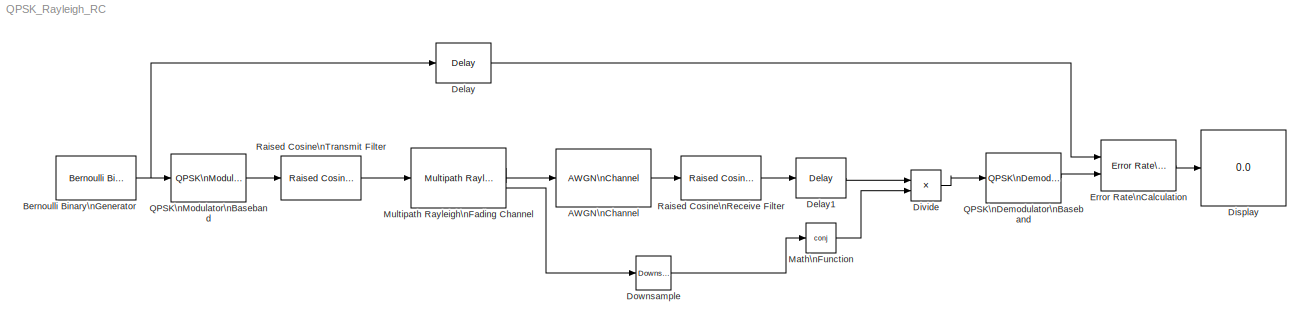
MODEL QPSK_Rayleigh_RC
KIND model
BLOCK [Reference] AWGN\nChannel  REF=commchan3/AWGN\nChannel
  EbNodB = 10
  EsNodB = 10
  FunctionWithSeparateData = off
  GeneratePreprocessorConditionals = off
  InputProcessing = Columns as channels (frame based)
  Ports = [1, 1]
  Ps = 1
  RTWMemSecDataConstants = Inherit from model
  RTWMemSecDataInternal = Inherit from model
  RTWMemSecDataParameters = Inherit from model
  RTWMemSecFuncExecute = Inherit from model
  RTWMemSecFuncInitTerm = Inherit from model
  SID = 3
  SNRdB = 7
  ShowPortLabels = FromPortIcon
  SourceBlock = commchan3/AWGN\nChannel
  SourceType = AWGN Channel
  SystemSampleTime = -1
  Tsym = 1
  UserData = DataTag0
  UserDataPersistent = on
  bitsPerSym = 1
  noiseMode = Signal to noise ratio  (SNR)
  seed = 67
  variance = 1
BLOCK [Reference] Bernoulli Binary\nGenerator  REF=commrandsrc2/Bernoulli Binary\nGenerator
  DialogController = commDDGCreate
  DialogControllerArgs = DataTag1
  FunctionWithSeparateData = off
  GeneratePreprocessorConditionals = off
  P = 0.5
  Ports = [0, 1]
  RTWMemSecDataConstants = Inherit from model
  RTWMemSecDataInternal = Inherit from model
  RTWMemSecDataParameters = Inherit from model
  RTWMemSecFuncExecute = Inherit from model
  RTWMemSecFuncInitTerm = Inherit from model
  SID = 1
  ShowPortLabels = FromPortIcon
  SourceBlock = commrandsrc2/Bernoulli Binary\nGenerator
  SourceType = Bernoulli Binary Generator
  SystemSampleTime = -1
  Ts = 1e-6
  frameBased = on
  orient = off
  outDataType = double
  sampPerFrame = 100
  seed = 61
BLOCK [Reference] Delay  REF=dspsigops/Delay
  InputProcessing = Columns as channels (frame based)
  Ports = [1, 1]
  SID = 11
  SourceBlock = dspsigops/Delay
  SourceType = Delay
  UserData = DataTag2
  UserDataPersistent = on
  delay = 100
  dif_ic_for_ch = off
  dif_ic_for_dly = off
  dly_unit = Samples
  ic = 0
  ic_detail = off
  reset_popup = None
BLOCK [Reference] Delay1  REF=dspsigops/Delay
  InputProcessing = Columns as channels (frame based)
  Ports = [1, 1]
  SID = 13
  SourceBlock = dspsigops/Delay
  SourceType = Delay
  UserData = DataTag3
  UserDataPersistent = on
  delay = 40
  dif_ic_for_ch = off
  dif_ic_for_dly = off
  dly_unit = Samples
  ic = 0
  ic_detail = off
  reset_popup = None
BLOCK [Display] Display
  Decimation = 1
  Lockdown = off
  Ports = [1]
  SID = 6
BLOCK [Product] Divide
  InputSameDT = off
  Inputs = **
  OutDataTypeStr = Inherit: Inherit via internal rule
  Ports = [2, 1]
  RndMeth = Floor
  SID = 23
  SaturateOnIntegerOverflow = off
BLOCK [Reference] Downsample  REF=dspsigops/Downsample
  InputProcessing = Columns as channels (frame based)
  N = 8
  Ports = [1, 1]
  RateOptions = Enforce single-rate processing
  SID = 24
  SourceBlock = dspsigops/Downsample
  SourceType = Downsample
  UserData = DataTag4
  UserDataPersistent = on
  fmode = Maintain input frame size
  ic = 0
  phase = 0
  smode = Allow multirate
BLOCK [Reference] Error Rate\nCalculation  REF=commsink2/Error Rate\nCalculation
  N = 0
  PMode = Port
  Ports = [2, 1]
  RsMode2 = off
  SID = 5
  SourceBlock = commsink2/Error Rate\nCalculation
  SourceType = Error Rate Calculation
  WsName = ErrorVec
  cp_mode = Entire frame
  maxBits = 1e6
  numErr = 100
  st_delay = 0
  stop = off
  subframe = []
BLOCK [Math] Math\nFunction
  Operator = conj
  Ports = [1, 1]
  SID = 21
BLOCK [Reference] Multipath Rayleigh\nFading Channel  REF=commchan3/Multipath Rayleigh\nFading Channel
  FunctionWithSeparateData = off
  GeneratePreprocessorConditionals = off
  Ports = [1, 2]
  RTWMemSecDataConstants = Inherit from model
  RTWMemSecDataInternal = Inherit from model
  RTWMemSecDataParameters = Inherit from model
  RTWMemSecFuncExecute = Inherit from model
  RTWMemSecFuncInitTerm = Inherit from model
  SID = 20
  ShowPortLabels = FromPortIcon
  SourceBlock = commchan3/Multipath Rayleigh\nFading Channel
  SourceType = Multipath Rayleigh Fading Channel
  SystemSampleTime = -1
  avgPathGaindB = 0
  centerFreqGaussian1 = 0.0
  centerFreqGaussian2 = 0.0
  coeffBell = 9
  coeffRounded = [1 -1.72 0.785]
  dopplerSpectrum = doppler.jakes
  enableProbe = 0
  freqMinMaxAJakes = [0 1]
  freqMinMaxRJakes = [0 1]
  gainGaussian1 = 0.5
  gainGaussian2 = 0.5
  maxDopplerShift = 40
  normalizePathGains = on
  openVisAtStart = off
  outDelay = off
  outPathGains = on
  pathDelays = 0
  seed = 73
  sigmaGaussian = 1/sqrt(2)
  sigmaGaussian1 = 1/sqrt(2)
  sigmaGaussian2 = 1/sqrt(2)
  spectrumType = Jakes
BLOCK [Reference] QPSK\nDemodulator\nBaseband  REF=commdigbbndpm3/QPSK\nDemodulator\nBaseband
  Dec = Gray
  DecType = Hard decision
  DialogController = commDDGCreate
  DialogControllerArgs = DataTag5
  OutType = Bit
  Ph = pi/4
  Ports = [1, 1]
  SID = 4
  SourceBlock = commdigbbndpm3/QPSK\nDemodulator\nBaseband
  SourceType = QPSK Demodulator Baseband
  VarSource = Dialog
  Variance = 1
  derotateFactorDTMode = Same word length as input
  derotateFactorWordLen = 16
  outDtype1 = Inherit via internal rule
  outDtype2 = Inherit via internal rule
BLOCK [Reference] QPSK\nModulator\nBaseband  REF=commdigbbndpm3/QPSK\nModulator\nBaseband
  DialogController = commDDGCreate
  DialogControllerArgs = DataTag6
  Enc = Gray
  FunctionWithSeparateData = off
  GeneratePreprocessorConditionals = off
  InType = Bit
  Ph = pi/4
  Ports = [1, 1]
  RTWMemSecDataConstants = Inherit from model
  RTWMemSecDataInternal = Inherit from model
  RTWMemSecDataParameters = Inherit from model
  RTWMemSecFuncExecute = Inherit from model
  RTWMemSecFuncInitTerm = Inherit from model
  SID = 2
  ShowPortLabels = FromPortIcon
  SourceBlock = commdigbbndpm3/QPSK\nModulator\nBaseband
  SourceType = QPSK Modulator Baseband
  SystemSampleTime = -1
  outDtype = double
  outFracLen = 15
  outFracLenMode = Best precision
  outUDDataType = sfix(16)
  outWordLen = 16
BLOCK [Reference] Raised Cosine\nReceive Filter  REF=commfilt2/Raised Cosine\nReceive Filter
  D = 5
  DialogController = dspDDGCreate
  DialogControllerArgs = DataTag8
  FunctionWithSeparateData = off
  GeneratePreprocessorConditionals = off
  InputProcessing = Columns as channels (frame based)
  LockScale = off
  N = 8
  Ports = [1, 1]
  R = 0.2
  RTWMemSecDataConstants = Inherit from model
  RTWMemSecDataInternal = Inherit from model
  RTWMemSecDataParameters = Inherit from model
  RTWMemSecFuncExecute = Inherit from model
  RTWMemSecFuncInitTerm = Inherit from model
  SID = 10
  ShowPortLabels = FromPortIcon
  SourceBlock = commfilt2/Raised Cosine\nReceive Filter
  SourceType = Raised Cosine Receive Filter
  SystemSampleTime = -1
  UserData = DataTag7
  UserDataPersistent = on
  accumFracLength = 30
  accumMode = Same as product output
  accumWordLength = 32
  checkCoeff = off
  checkGain = Normalized
  coeffFracLength = 15
  coeffMode = Same word length as input
  coeffWordLength = 16
  downFactor = 8
  downOffset = 0
  filtType = Square root
  filterGain = 1
  framing = Enforce single-rate processing
  launchFVT = off
  outputFracLength = 15
  outputMode = Same as accumulator
  outputWordLength = 16
  overflowMode = off
  prodOutputFracLength = 30
  prodOutputMode = Same as input
  prodOutputWordLength = 32
  rateMode = Downsampling
  roundingMode = Floor
  sampMode = Mute
  saveAsFlag = 0
  variableName = rcRxFilt
BLOCK [Reference] Raised Cosine\nTransmit Filter  REF=commfilt2/Raised Cosine\nTransmit Filter
  D = 5
  DialogController = dspDDGCreate
  DialogControllerArgs = DataTag10
  FunctionWithSeparateData = off
  GeneratePreprocessorConditionals = off
  InputProcessing = Columns as channels (frame based)
  LockScale = off
  N = 8
  Ports = [1, 1]
  R = 0.2
  RTWMemSecDataConstants = Inherit from model
  RTWMemSecDataInternal = Inherit from model
  RTWMemSecDataParameters = Inherit from model
  RTWMemSecFuncExecute = Inherit from model
  RTWMemSecFuncInitTerm = Inherit from model
  SID = 9
  ShowPortLabels = FromPortIcon
  SourceBlock = commfilt2/Raised Cosine\nTransmit Filter
  SourceType = Raised Cosine Transmit Filter
  SystemSampleTime = -1
  UserData = DataTag9
  UserDataPersistent = on
  accumFracLength = 30
  accumMode = Inherit via internal rule
  accumWordLength = 32
  checkCoeff = off
  checkGain = Normalized
  coeffFracLength = 15
  coeffMode = Same word length as input
  coeffWordLength = 16
  filtType = Square root
  filterGain = 1
  framing = Enforce single-rate processing
  launchFVT = off
  outputFracLength = 15
  outputMode = Same as accumulator
  outputWordLength = 16
  overflowMode = off
  prodOutputFracLength = 30
  prodOutputMode = Inherit via internal rule
  prodOutputWordLength = 32
  roundingMode = Floor
  sampMode = Mute
  saveAsFlag = 0
  variableName = rcTxFilt
LINE AWGN\nChannel:1 -> Raised Cosine\nReceive Filter:1
NET Bernoulli Binary\nGenerator:1 -> Delay:1, QPSK\nModulator\nBaseband:1
LINE Delay1:1 -> Divide:1
LINE Delay:1 -> Error Rate\nCalculation:1
LINE Divide:1 -> QPSK\nDemodulator\nBaseband:1
LINE Downsample:1 -> Math\nFunction:1
LINE Error Rate\nCalculation:1 -> Display:1
LINE Math\nFunction:1 -> Divide:2
LINE Multipath Rayleigh\nFading Channel:1 -> AWGN\nChannel:1
LINE Multipath Rayleigh\nFading Channel:2 -> Downsample:1
LINE QPSK\nDemodulator\nBaseband:1 -> Error Rate\nCalculation:2
LINE QPSK\nModulator\nBaseband:1 -> Raised Cosine\nTransmit Filter:1
LINE Raised Cosine\nReceive Filter:1 -> Delay1:1
LINE Raised Cosine\nTransmit Filter:1 -> Multipath Rayleigh\nFading Channel:1
note: NET lines group one-source signal fan-out (src -> all destinations, sorted); 1:1 wires keep LINE
